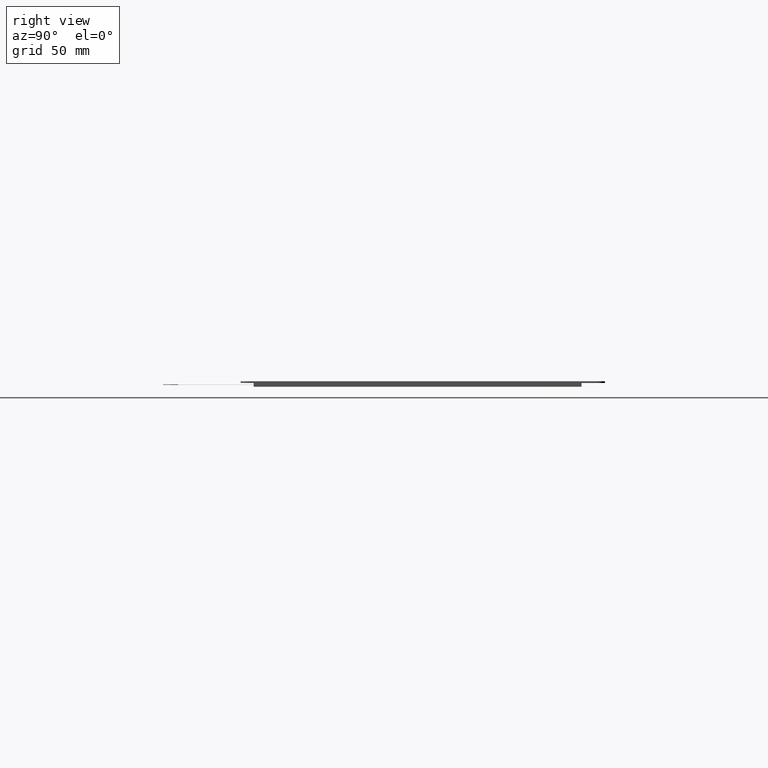
[diagram: clean part render]
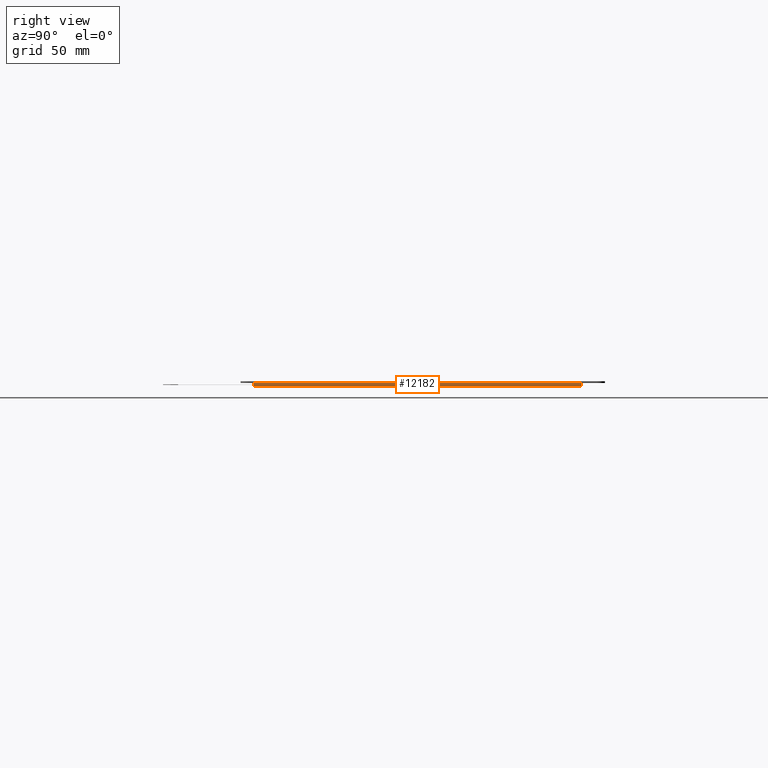
[diagram: same view with one face highlighted and labeled with its STEP entity id]
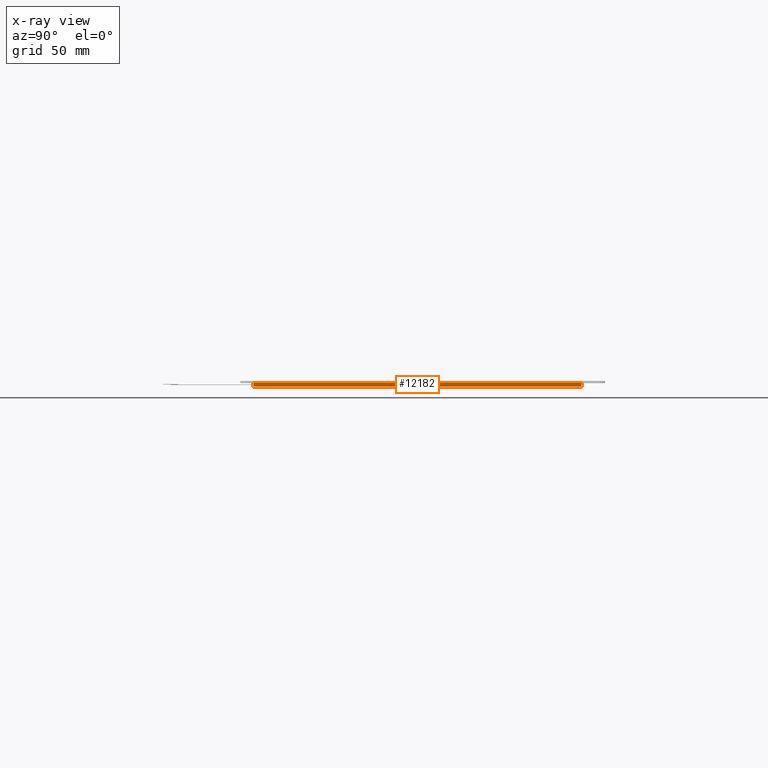
[diagram: x-ray of the same camera — body ghosted, the highlighted face saturated]
A machine part, right view. The second image highlights one B-rep face of the part: STEP entity #12182.
The next image is the same camera in x-ray: the body ghosted, the highlighted face saturated — about 0% of this face is hidden behind the body in this view.
In plain terms, the highlighted planar face has unit normal (1, 0, 0).
Its self-contained STEP definition (entity closure, byte-faithful):
#618=PLANE('',#12804);
#1202=FACE_OUTER_BOUND('',#1790,.T.);
#1790=EDGE_LOOP('',(#11563,#11564,#11565,#11566));
#3493=LINE('',#19156,#5209);
#3499=LINE('',#19170,#5215);
#3500=LINE('',#19173,#5216);
#3501=LINE('',#19174,#5217);
#5209=VECTOR('',#15681,10.);
#5215=VECTOR('',#15697,10.);
#5216=VECTOR('',#15700,10.);
#5217=VECTOR('',#15701,10.);
#6389=VERTEX_POINT('',#19153);
#6390=VERTEX_POINT('',#19155);
#6393=VERTEX_POINT('',#19168);
#6394=VERTEX_POINT('',#19172);
#8113=EDGE_CURVE('',#6389,#6390,#3493,.T.);
#8119=EDGE_CURVE('',#6389,#6393,#3499,.T.);
#8120=EDGE_CURVE('',#6394,#6393,#3500,.T.);
#8121=EDGE_CURVE('',#6390,#6394,#3501,.T.);
#11563=ORIENTED_EDGE('',*,*,#8113,.F.);
#11564=ORIENTED_EDGE('',*,*,#8119,.T.);
#11565=ORIENTED_EDGE('',*,*,#8120,.F.);
#11566=ORIENTED_EDGE('',*,*,#8121,.F.);
#12182=ADVANCED_FACE('',(#1202),#618,.T.);
#12804=AXIS2_PLACEMENT_3D('',#19171,#15698,#15699);
#15681=DIRECTION('',(0.,1.,0.));
#15697=DIRECTION('',(0.,0.,-1.));
#15698=DIRECTION('center_axis',(1.,0.,0.));
#15699=DIRECTION('ref_axis',(0.,-1.,0.));
#15700=DIRECTION('',(0.,-1.,0.));
#15701=DIRECTION('',(0.,0.,-1.));
#19153=CARTESIAN_POINT('',(180.45,-112.1,0.));
#19155=CARTESIAN_POINT('',(180.45,105.2,0.));
#19156=CARTESIAN_POINT('',(180.45,-112.1,0.));
#19168=CARTESIAN_POINT('',(180.45,-112.1,-2.5));
#19170=CARTESIAN_POINT('',(180.45,-112.1,0.));
#19171=CARTESIAN_POINT('Origin',(180.45,105.2,0.));
#19172=CARTESIAN_POINT('',(180.45,105.2,-2.5));
#19173=CARTESIAN_POINT('',(180.45,-112.1,-2.5));
#19174=CARTESIAN_POINT('',(180.45,105.2,0.));